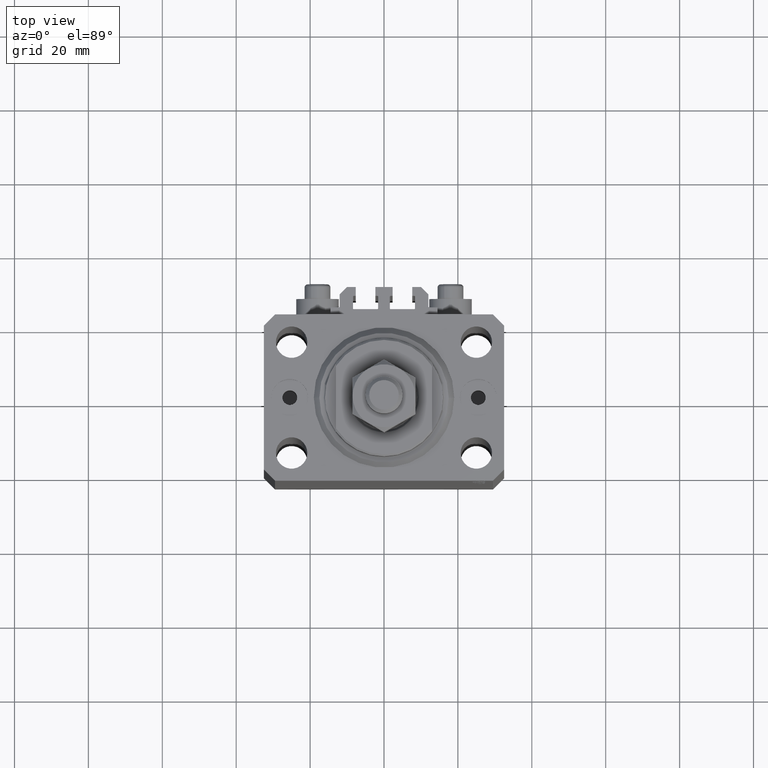
[diagram: clean part render]
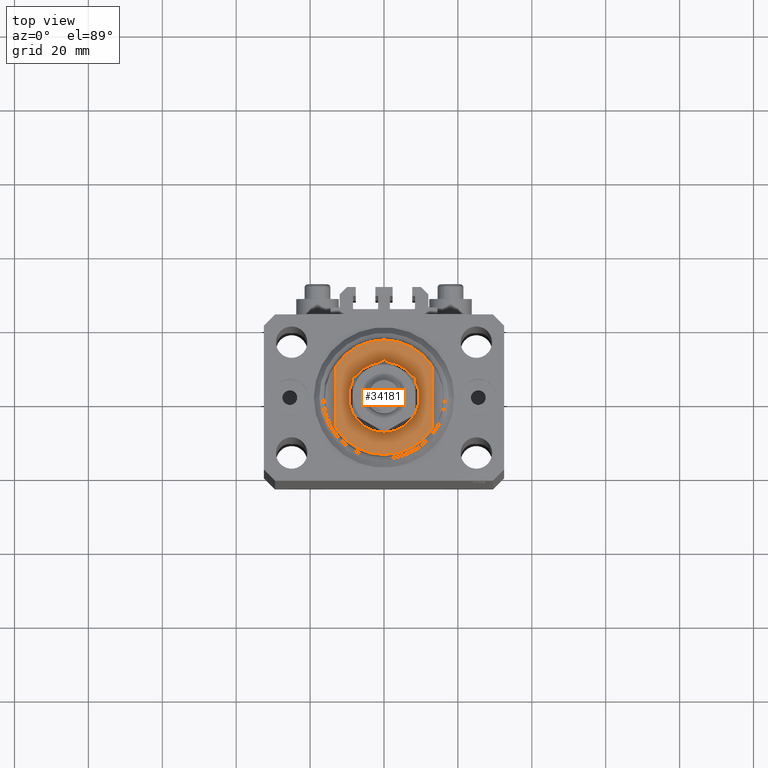
[diagram: same view with one face highlighted and labeled with its STEP entity id]
A machine part, top view. The second image highlights one B-rep face of the part: STEP entity #34181.
In plain terms, the highlighted planar face has unit normal (0, 0, 1).
Its self-contained STEP definition (entity closure, byte-faithful):
#434 = CIRCLE ( 'NONE', #29554, 9.500000000000015987 ) ;
#498 = ORIENTED_EDGE ( 'NONE', *, *, #22100, .T. ) ;
#647 = CARTESIAN_POINT ( 'NONE',  ( 13.00000000000000000, -8.440971508067139695, -6.500000000000000000 ) ) ;
#2298 = DIRECTION ( 'NONE',  ( 0.000000000000000000, 0.000000000000000000, -1.000000000000000000 ) ) ;
#3464 = CARTESIAN_POINT ( 'NONE',  ( -13.00000000000000000, 8.440971508067139695, -6.500000000000000000 ) ) ;
#3705 = ORIENTED_EDGE ( 'NONE', *, *, #44947, .T. ) ;
#5556 = ORIENTED_EDGE ( 'NONE', *, *, #45276, .F. ) ;
#6428 = AXIS2_PLACEMENT_3D ( 'NONE', #25885, #18251, #14788 ) ;
#8235 = AXIS2_PLACEMENT_3D ( 'NONE', #27916, #2298, #24451 ) ;
#9469 = CARTESIAN_POINT ( 'NONE',  ( 13.00000000000000000, 8.440971508067139695, -6.500000000000000000 ) ) ;
#11042 = DIRECTION ( 'NONE',  ( 0.000000000000000000, -1.000000000000000000, -0.000000000000000000 ) ) ;
#12072 = CARTESIAN_POINT ( 'NONE',  ( 0.000000000000000000, 0.000000000000000000, -6.500000000000000000 ) ) ;
#12229 = VECTOR ( 'NONE', #17126, 1000.000000000000000 ) ;
#13509 = EDGE_CURVE ( 'NONE', #31148, #16351, #13767, .T. ) ;
#13767 = CIRCLE ( 'NONE', #8235, 15.50000000000003730 ) ;
#14788 = DIRECTION ( 'NONE',  ( -1.000000000000000000, 0.000000000000000000, 0.000000000000000000 ) ) ;
#15540 = DIRECTION ( 'NONE',  ( -1.000000000000000000, 0.000000000000000000, 0.000000000000000000 ) ) ;
#15604 = CARTESIAN_POINT ( 'NONE',  ( 0.000000000000000000, 0.000000000000000000, -6.500000000000000000 ) ) ;
#16351 = VERTEX_POINT ( 'NONE', #9469 ) ;
#16738 = AXIS2_PLACEMENT_3D ( 'NONE', #15604, #25733, #40783 ) ;
#17126 = DIRECTION ( 'NONE',  ( -0.000000000000000000, -1.000000000000000000, -0.000000000000000000 ) ) ;
#17250 = ORIENTED_EDGE ( 'NONE', *, *, #23960, .T. ) ;
#18214 = LINE ( 'NONE', #26573, #27506 ) ;
#18251 = DIRECTION ( 'NONE',  ( -0.000000000000000000, -0.000000000000000000, 1.000000000000000000 ) ) ;
#19000 = CARTESIAN_POINT ( 'NONE',  ( 9.500000000000015987, 1.163414459189987457E-15, -6.500000000000000000 ) ) ;
#19311 = FACE_OUTER_BOUND ( 'NONE', #41754, .T. ) ;
#19808 = CIRCLE ( 'NONE', #6428, 9.500000000000015987 ) ;
#19984 = DIRECTION ( 'NONE',  ( 0.000000000000000000, 0.000000000000000000, -1.000000000000000000 ) ) ;
#22100 = EDGE_CURVE ( 'NONE', #16351, #22491, #18214, .T. ) ;
#22295 = EDGE_LOOP ( 'NONE', ( #27332, #3705 ) ) ;
#22491 = VERTEX_POINT ( 'NONE', #647 ) ;
#23191 = DIRECTION ( 'NONE',  ( -1.000000000000000000, 0.000000000000000000, 0.000000000000000000 ) ) ;
#23960 = EDGE_CURVE ( 'NONE', #22491, #31694, #26791, .T. ) ;
#24451 = DIRECTION ( 'NONE',  ( -1.000000000000000000, 0.000000000000000000, 0.000000000000000000 ) ) ;
#25733 = DIRECTION ( 'NONE',  ( 0.000000000000000000, 0.000000000000000000, -1.000000000000000000 ) ) ;
#25885 = CARTESIAN_POINT ( 'NONE',  ( 0.000000000000000000, 0.000000000000000000, -6.500000000000000000 ) ) ;
#26573 = CARTESIAN_POINT ( 'NONE',  ( 13.00000000000000000, -43.08131845707602992, -6.500000000000000000 ) ) ;
#26791 = CIRCLE ( 'NONE', #37043, 15.50000000000003730 ) ;
#27112 = DIRECTION ( 'NONE',  ( -0.000000000000000000, -0.000000000000000000, 1.000000000000000000 ) ) ;
#27332 = ORIENTED_EDGE ( 'NONE', *, *, #32063, .T. ) ;
#27506 = VECTOR ( 'NONE', #11042, 1000.000000000000000 ) ;
#27916 = CARTESIAN_POINT ( 'NONE',  ( 0.000000000000000000, 0.000000000000000000, -6.500000000000000000 ) ) ;
#28451 = CARTESIAN_POINT ( 'NONE',  ( -13.00000000000000000, -43.08131845707602992, -6.500000000000000000 ) ) ;
#29554 = AXIS2_PLACEMENT_3D ( 'NONE', #12072, #27112, #15540 ) ;
#30459 = LINE ( 'NONE', #28451, #12229 ) ;
#31073 = CARTESIAN_POINT ( 'NONE',  ( 0.000000000000000000, 0.000000000000000000, -6.500000000000000000 ) ) ;
#31148 = VERTEX_POINT ( 'NONE', #3464 ) ;
#31694 = VERTEX_POINT ( 'NONE', #44216 ) ;
#32063 = EDGE_CURVE ( 'NONE', #48644, #37169, #19808, .T. ) ;
#32523 = CARTESIAN_POINT ( 'NONE',  ( -9.500000000000015987, 0.000000000000000000, -6.500000000000000000 ) ) ;
#34181 = ADVANCED_FACE ( 'NONE', ( #38032, #19311 ), #34335, .T. ) ;
#34335 = PLANE ( 'NONE',  #16738 ) ;
#37043 = AXIS2_PLACEMENT_3D ( 'NONE', #31073, #19984, #23191 ) ;
#37169 = VERTEX_POINT ( 'NONE', #19000 ) ;
#38032 = FACE_BOUND ( 'NONE', #22295, .T. ) ;
#40783 = DIRECTION ( 'NONE',  ( -1.000000000000000000, 0.000000000000000000, -0.000000000000000000 ) ) ;
#41754 = EDGE_LOOP ( 'NONE', ( #44990, #498, #17250, #5556 ) ) ;
#44216 = CARTESIAN_POINT ( 'NONE',  ( -13.00000000000000000, -8.440971508067139695, -6.500000000000000000 ) ) ;
#44947 = EDGE_CURVE ( 'NONE', #37169, #48644, #434, .T. ) ;
#44990 = ORIENTED_EDGE ( 'NONE', *, *, #13509, .T. ) ;
#45276 = EDGE_CURVE ( 'NONE', #31148, #31694, #30459, .T. ) ;
#48644 = VERTEX_POINT ( 'NONE', #32523 ) ;